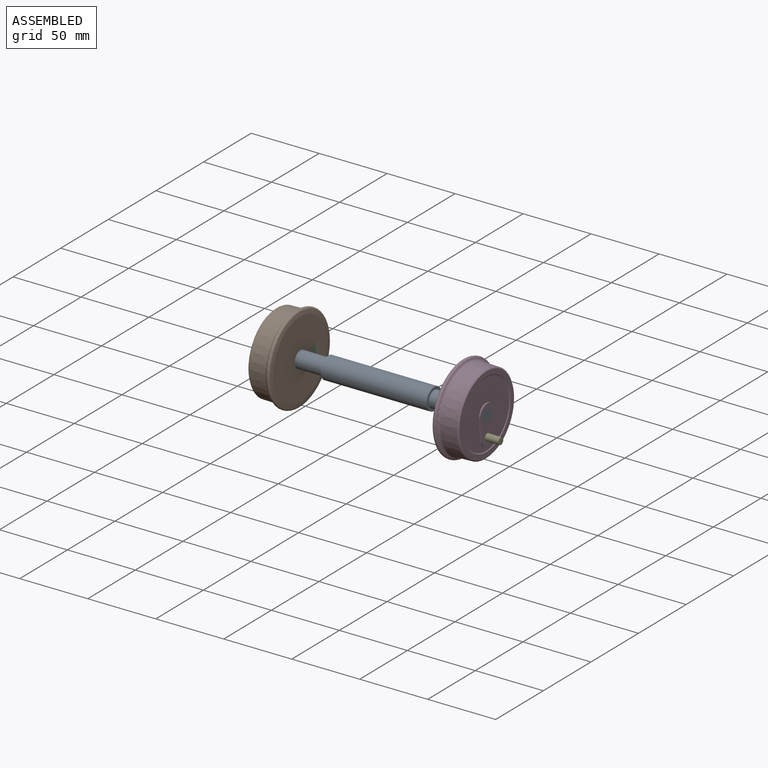
[diagram: assembled view]
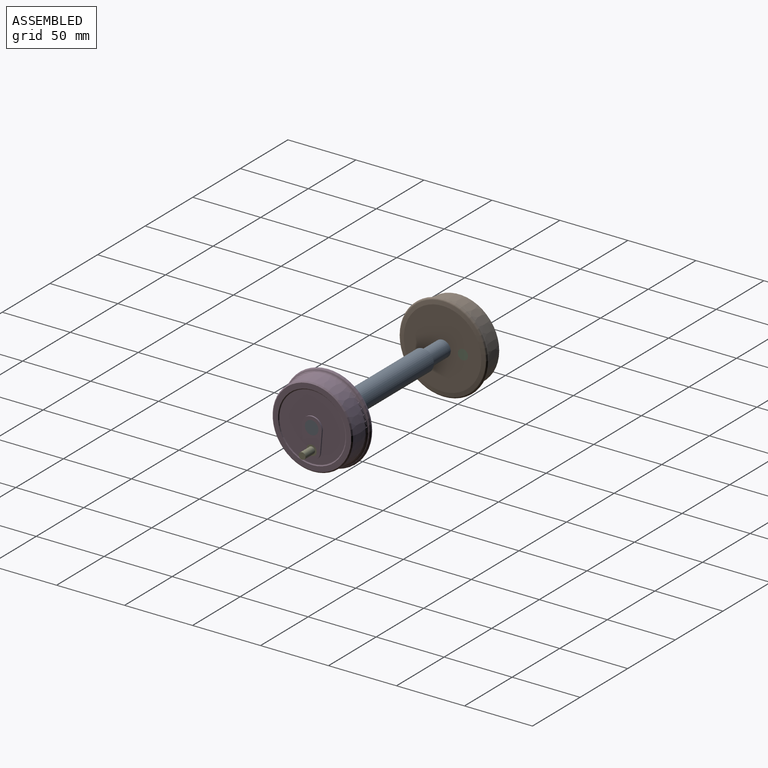
[diagram: assembled view, second angle]
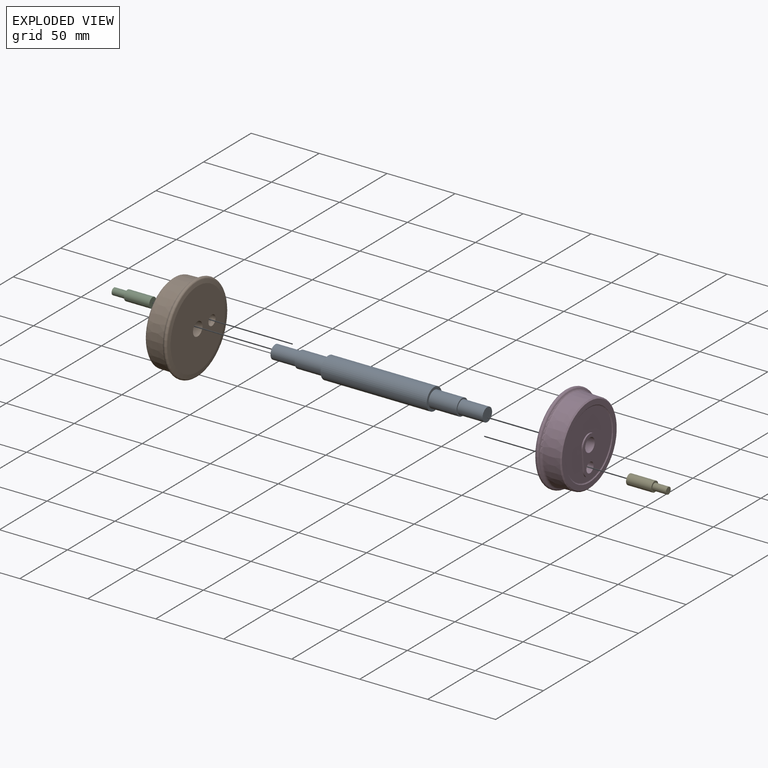
[diagram: exploded view]
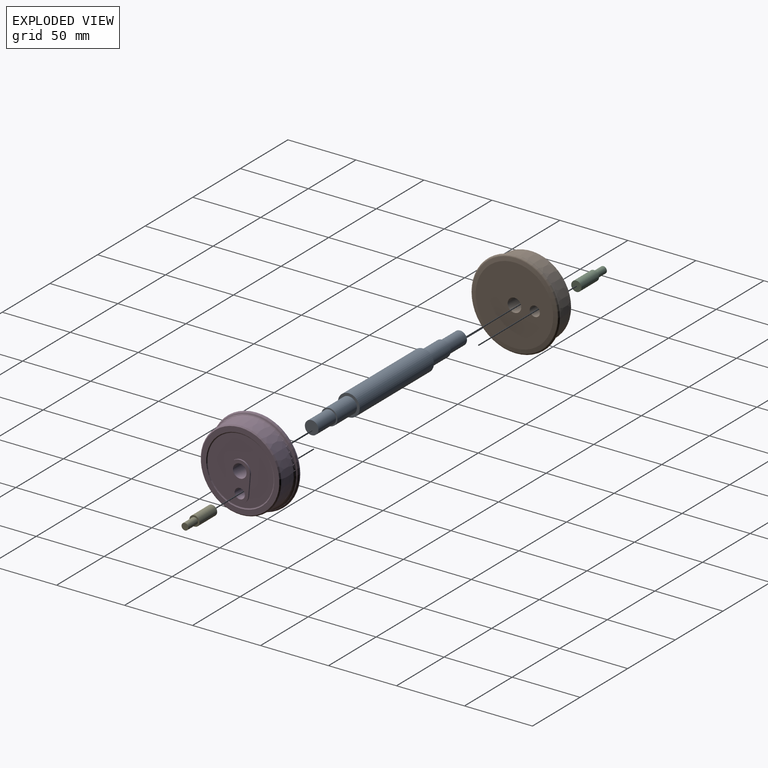
[diagram: exploded view, second angle]
ASSEMBLY  parts=5 mates=4
PART A: 11 faces, bbox 156x16x16 mm
  f0: plane 12x12mm, normal (1,0,0), area 34.6mm2, adj f1,f3
  f1: cylinder r=5mm len=18.5mm, axis (1,0,0), area 581.2mm2, adj f0,f2
  f2: plane 10x10mm, normal (1,0,0), area 78.5mm2, adj f1
  f3: cylinder r=6mm len=20.5mm, axis (1,0,0), area 772.8mm2, adj f0,f4
  f4: plane 16x16mm, normal (1,0,0), area 88mm2, adj f3,f5
  f5: cylinder r=8mm len=78mm, axis (-1,0,0), area 3920.7mm2, adj f4,f10
  f6: plane 12x12mm, normal (-1,0,0), area 34.6mm2, adj f7,f9
  f7: cylinder r=5mm len=18.5mm, axis (-1,0,0), area 581.2mm2, adj f6,f8
  f8: plane 10x10mm, normal (-1,0,0), area 78.5mm2, adj f7
  f9: cylinder r=6mm len=20.5mm, axis (-1,0,0), area 772.8mm2, adj f6,f10
  f10: plane 16x16mm, normal (-1,0,0), area 88mm2, adj f5,f9
PART B: 19 faces, bbox 18.5x70.4x70.4 mm
  f0: plane 48.27x48.27mm, normal (1,0,0), area 1473.1mm2, adj f6,f7,f8,f9,f10
  f1: plane 57.6x57.6mm, normal (1,0,0), area 642.3mm2, adj f6,f14
  f2: cylinder r=32.5mm len=65mm, axis (-1,0,0), area 3.9mm2, adj f15,f16
  f3: plane 57x57mm, normal (-1,0,0), area 2429mm2, adj f13,f17,f18
  f4: cone r=28.5mm half-angle=74deg, axis (-1,0,0), area 49.1mm2, adj f12,f16
  f5: cone r=29.6mm half-angle=1.5deg, axis (-1,0,0), area 2303.3mm2, adj f12,f14
  f6: torus R=24.13mm, axis (-1,0,0), area 161.9mm2, adj f0,f1
  f7: cylinder r=7.5mm len=15mm, axis (-1,0,0), area 24.8mm2, adj f0,f8,f10,f11
  f8: plane 14.9x1.25mm, normal (0,-1,-0.08), area 14.9mm2, adj f0,f7,f9,f11
  f9: cylinder r=6.25mm len=12.46mm, axis (-1,0,0), area 18.6mm2, adj f0,f8,f10,f11
  f10: plane 14.9x1.25mm, normal (0,1,-0.08), area 14.9mm2, adj f0,f7,f9,f11
  f11: plane 28.75x15mm, normal (1,0,0), area 234mm2, adj f7,f8,f9,f10,f17,f18
  f12: torus R=31.74mm, axis (-1,0,0), area 435.2mm2, adj f4,f5
  f13: cone r=32.5mm half-angle=82deg, axis (1,0,0), area 530.2mm2, adj f3,f15
  f14: cone r=28.8mm half-angle=45.8deg, axis (-1,0,0), area 210.3mm2, adj f1,f5
  f15: torus R=31.1mm, axis (-1,0,0), area 403.7mm2, adj f2,f13
  f16: torus R=31.1mm, axis (1,0,0), area 365.2mm2, adj f2,f4
  f17: cylinder r=3.75mm len=18.5mm, axis (1,0,0), area 435.9mm2, adj f3,f11
  f18: cylinder r=5mm len=18.5mm, axis (1,0,0), area 581.2mm2, adj f3,f11
PART C: 5 faces, bbox 28.5x7.5x7.5 mm
  f0: cylinder r=3.75mm len=18.5mm, axis (-1,0,0), area 435.9mm2, adj f1,f2
  f1: plane 7.5x7.5mm, normal (1,0,0), area 24.5mm2, adj f0,f3
  f2: plane 7.5x7.5mm, normal (-1,0,0), area 44.2mm2, adj f0
  f3: cylinder r=2.5mm len=10mm, axis (-1,0,0), area 157.1mm2, adj f1,f4
  f4: plane 5x5mm, normal (1,0,0), area 19.6mm2, adj f3
PART D: same geometry as B
PART E: same geometry as C
PLACE A t=(-87.72,-9.24,6.46)mm fixed
PLACE B rot(axis=(0,-0.71,0.71),180deg) t=(-147.22,-9.24,6.46)mm
PLACE C rot(axis=(0,1,0),180deg) t=(-147.22,5.76,6.46)mm
PLACE D t=(-28.22,-9.24,6.46)mm
PLACE E t=(-28.22,-9.24,-8.54)mm
MATE fastened B.f18 <-> A.f1  axis (-1,0,0) through (-165.72,-9.24,6.46)mm
MATE fastened E.f0 <-> D.f17  axis (-1,0,0) through (-28.22,-9.24,-8.54)mm
MATE fastened A.f1 <-> D.f7  axis (1,0,0) through (-9.72,-9.24,6.46)mm
MATE fastened C.f0 <-> B.f17  axis (1,0,0) through (-147.22,5.76,6.46)mm
